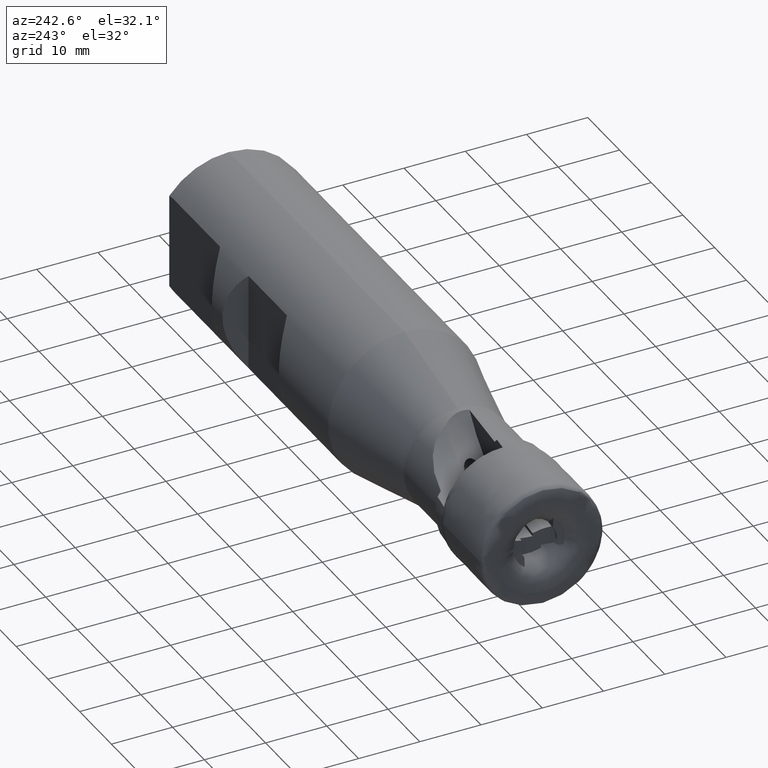
[diagram: clean part render]
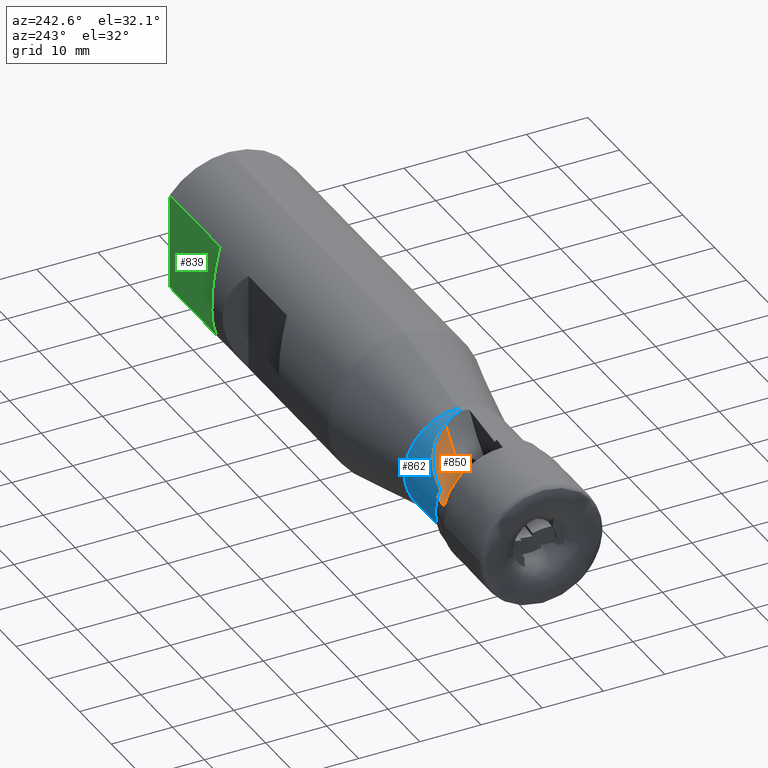
[diagram: same view with three faces highlighted in distinct colors, each labeled with its STEP entity id]
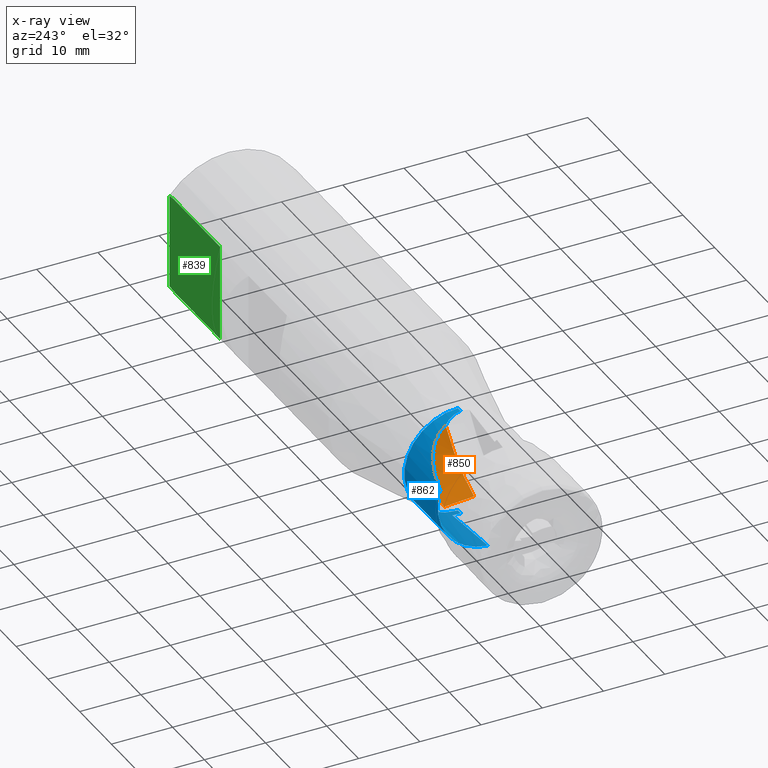
[diagram: x-ray of the same camera — body ghosted, the three highlighted faces saturated]
A machine part, auxiliary view with three faces highlighted in distinct colors.
The next image is the same camera in x-ray (body ghosted, the three faces saturated) — at least one of them is partly hidden behind the body in this view.
Their STEP definitions:

[orange] entity #850 — the highlighted cylindrical surface (partial cylindrical patch) has radius 19.8143 mm, axis along (-0.0872, -0.9962, -0).
#31 = CIRCLE ( 'NONE', #685, 19.81428554974587500 ) ;
#382 = EDGE_LOOP ( 'NONE', ( #734, #725, #746, #747, #697, #698 ) ) ;
#685 = AXIS2_PLACEMENT_3D ( 'NONE', #1000, #1192, #967 ) ;
#697 = ORIENTED_EDGE ( 'NONE', *, *, #1785, .F. ) ;
#698 = ORIENTED_EDGE ( 'NONE', *, *, #1861, .F. ) ;
#725 = ORIENTED_EDGE ( 'NONE', *, *, #1794, .T. ) ;
#734 = ORIENTED_EDGE ( 'NONE', *, *, #1835, .F. ) ;
#746 = ORIENTED_EDGE ( 'NONE', *, *, #1815, .T. ) ;
#747 = ORIENTED_EDGE ( 'NONE', *, *, #1842, .T. ) ;
#850 = ADVANCED_FACE ( 'NONE', ( #943 ), #925, .F. ) ;
#925 = CYLINDRICAL_SURFACE ( 'NONE', #1574, 19.81428554974587500 ) ;
#943 = FACE_OUTER_BOUND ( 'NONE', #382, .T. ) ;
#967 = DIRECTION ( 'NONE',  ( 0.9961946980917454300, -0.08715574274765848500, 0.0000000000000000000 ) ) ;
#983 = CARTESIAN_POINT ( 'NONE',  ( 14.50000000000020300, 9.219193377918768900, 2.604395027743460200 ) ) ;
#1000 = CARTESIAN_POINT ( 'NONE',  ( 9.157088783744884000, 4.516396856783984500, 21.80000000000000100 ) ) ;
#1002 = CARTESIAN_POINT ( 'NONE',  ( 15.05828743678069900, 8.588489677310288800, 2.768692456569553900 ) ) ;
#1039 = CARTESIAN_POINT ( 'NONE',  ( 14.78122092270199100, 8.904730300291522100, 2.683107926975033300 ) ) ;
#1069 = CARTESIAN_POINT ( 'NONE',  ( 15.32999999999999700, 8.269237145306405500, 2.860457486956373300 ) ) ;
#1092 = CARTESIAN_POINT ( 'NONE',  ( 14.50000000000020300, 9.219193377918768900, 2.604395027743460200 ) ) ;
#1103 = CARTESIAN_POINT ( 'NONE',  ( 12.35750454105835900, 7.793913043053199100, 2.199466215513528900 ) ) ;
#1114 = CARTESIAN_POINT ( 'NONE',  ( 12.14808933975809100, 9.335224908344882200, 2.151737881484960800 ) ) ;
#1132 = CARTESIAN_POINT ( 'NONE',  ( 23.43376164794002400, 3.267349828298721900, 8.117076142276666000 ) ) ;
#1135 = CARTESIAN_POINT ( 'NONE',  ( 13.72323294260443100, 9.275493978813630100, 2.405098791415420500 ) ) ;
#1151 = CARTESIAN_POINT ( 'NONE',  ( 14.50000000000020300, 9.219193377918768900, 2.604395027743460200 ) ) ;
#1160 = CARTESIAN_POINT ( 'NONE',  ( 12.14808933975809100, 9.335224908344882200, 2.151737881484960800 ) ) ;
#1163 = CARTESIAN_POINT ( 'NONE',  ( 12.60916826578094300, 4.214379036515348200, 2.291082953356585100 ) ) ;
#1168 = CARTESIAN_POINT ( 'NONE',  ( 12.93911113265485600, 9.311500880315470900, 2.254663586001330400 ) ) ;
#1184 = CARTESIAN_POINT ( 'NONE',  ( 15.32999999999999700, 8.269237145306405500, 2.860457486956373300 ) ) ;
#1192 = DIRECTION ( 'NONE',  ( -0.08715574274765848500, -0.9961946980917455500, -0.0000000000000000000 ) ) ;
#1574 = AXIS2_PLACEMENT_3D ( 'NONE', #2439, #2425, #2402 ) ;
#1785 = EDGE_CURVE ( 'NONE', #1891, #1944, #2965, .T. ) ;
#1794 = EDGE_CURVE ( 'NONE', #1962, #1966, #2986, .T. ) ;
#1815 = EDGE_CURVE ( 'NONE', #1966, #1909, #2998, .T. ) ;
#1835 = EDGE_CURVE ( 'NONE', #1962, #1917, #2977, .T. ) ;
#1842 = EDGE_CURVE ( 'NONE', #1909, #1944, #31, .T. ) ;
#1861 = EDGE_CURVE ( 'NONE', #1917, #1891, #3000, .T. ) ;
#1891 = VERTEX_POINT ( 'NONE', #1184 ) ;
#1909 = VERTEX_POINT ( 'NONE', #1163 ) ;
#1917 = VERTEX_POINT ( 'NONE', #1151 ) ;
#1944 = VERTEX_POINT ( 'NONE', #1132 ) ;
#1962 = VERTEX_POINT ( 'NONE', #1114 ) ;
#1966 = VERTEX_POINT ( 'NONE', #1103 ) ;
#2402 = DIRECTION ( 'NONE',  ( 0.9961946980917454300, -0.08715574274765848500, 0.0000000000000000000 ) ) ;
#2425 = DIRECTION ( 'NONE',  ( -0.08715574274765848500, -0.9961946980917455500, -0.0000000000000000000 ) ) ;
#2439 = CARTESIAN_POINT ( 'NONE',  ( 8.764887941380420600, 0.03352071537112875200, 21.80000000000000100 ) ) ;
#2965 = B_SPLINE_CURVE_WITH_KNOTS ( 'NONE', 3,
 ( #3144, #3142, #3160, #3155, #3156, #3164, #3163, #3158, #3168, #3167, #3166, #3176, #3170, #3169, #3180, #3179, #3173, #3183 ),
 .UNSPECIFIED., .F., .F.,
 ( 4, 2, 2, 2, 2, 2, 2, 2, 4 ),
 ( 0.0000000000000000000, 0.002853986607634761700, 0.004280979911452141900, 0.005707973215269523400, 0.007134966519086904900, 0.007848463170995599600, 0.008561959822904294200, 0.009988953126721687000, 0.01141594643053908000 ),
 .UNSPECIFIED. ) ;
#2977 = B_SPLINE_CURVE_WITH_KNOTS ( 'NONE', 3,
 ( #1160, #1168, #1135, #1092 ),
 .UNSPECIFIED., .F., .F.,
 ( 4, 4 ),
 ( 0.002150208388324101400, 0.004544272779798186300 ),
 .UNSPECIFIED. ) ;
#2986 = B_SPLINE_CURVE_WITH_KNOTS ( 'NONE', 3,
 ( #3024, #3238, #3018, #3021, #3249, #3225, #3260, #3223, #3220, #3215 ),
 .UNSPECIFIED., .F., .F.,
 ( 4, 2, 2, 2, 4 ),
 ( 0.0001602028114527275200, 0.0003541536202329839000, 0.0005481044290132402900, 0.0009360060465737530700, 0.001711809281694773300 ),
 .UNSPECIFIED. ) ;
#2998 = B_SPLINE_CURVE_WITH_KNOTS ( 'NONE', 3,
 ( #3181, #3201, #3232, #3234, #3239, #3259, #3236, #3204 ),
 .UNSPECIFIED., .F., .F.,
 ( 4, 2, 2, 4 ),
 ( 0.001711809281694773300, 0.003481850491449730600, 0.004366871096327209700, 0.005251891701204689600 ),
 .UNSPECIFIED. ) ;
#3000 = B_SPLINE_CURVE_WITH_KNOTS ( 'NONE', 3,
 ( #983, #1039, #1002, #1069 ),
 .UNSPECIFIED., .F., .F.,
 ( 4, 4 ),
 ( 3.051446358772103700E-007, 0.001287505527985962000 ),
 .UNSPECIFIED. ) ;
#3018 = CARTESIAN_POINT ( 'NONE',  ( 12.20943570861929400, 9.220462662369650200, 2.161116278138896600 ) ) ;
#3021 = CARTESIAN_POINT ( 'NONE',  ( 12.25000585324980500, 9.098318557367147000, 2.168023841386519800 ) ) ;
#3024 = CARTESIAN_POINT ( 'NONE',  ( 12.14808933975809100, 9.335224908344882200, 2.151737881484960800 ) ) ;
#3142 = CARTESIAN_POINT ( 'NONE',  ( 16.24356160217822500, 8.171553003352325800, 3.142850544303844400 ) ) ;
#3144 = CARTESIAN_POINT ( 'NONE',  ( 15.32999999999999700, 8.269237145306405500, 2.860457486956373300 ) ) ;
#3155 = CARTESIAN_POINT ( 'NONE',  ( 18.37954578594072800, 7.736385814230250600, 4.094101937760970400 ) ) ;
#3156 = CARTESIAN_POINT ( 'NONE',  ( 18.78886371659832500, 7.619280054321092300, 4.310672538368579300 ) ) ;
#3158 = CARTESIAN_POINT ( 'NONE',  ( 20.69154357656442000, 6.803188936859261700, 5.511440178407235100 ) ) ;
#3160 = CARTESIAN_POINT ( 'NONE',  ( 17.12170894847631400, 8.037264225539372500, 3.488298774828475100 ) ) ;
#3163 = CARTESIAN_POINT ( 'NONE',  ( 19.96800456535427400, 7.177554121959129700, 5.014186811150271900 ) ) ;
#3164 = CARTESIAN_POINT ( 'NONE',  ( 19.58547780666691200, 7.339156054208326700, 4.772013693525777500 ) ) ;
#3166 = CARTESIAN_POINT ( 'NONE',  ( 21.67089220548536200, 6.088202028302801800, 6.287465461064226000 ) ) ;
#3167 = CARTESIAN_POINT ( 'NONE',  ( 21.51541685416091100, 6.220264194116905900, 6.156528738411914500 ) ) ;
#3168 = CARTESIAN_POINT ( 'NONE',  ( 21.03382124753783000, 6.590088358753217100, 5.767266807582594800 ) ) ;
#3169 = CARTESIAN_POINT ( 'NONE',  ( 22.50113624147077800, 5.200692677573195000, 7.047924874154329400 ) ) ;
#3170 = CARTESIAN_POINT ( 'NONE',  ( 22.10492836584311900, 5.663822864969978900, 6.672563067803477700 ) ) ;
#3173 = CARTESIAN_POINT ( 'NONE',  ( 23.30459688688467100, 3.700354705202221000, 7.942779587038649500 ) ) ;
#3176 = CARTESIAN_POINT ( 'NONE',  ( 21.96529231098132600, 5.810222595757901200, 6.545207349599421000 ) ) ;
#3179 = CARTESIAN_POINT ( 'NONE',  ( 23.13975424038730500, 4.104384010111057400, 7.740130417555130600 ) ) ;
#3180 = CARTESIAN_POINT ( 'NONE',  ( 22.73570771025000400, 4.859182230682606000, 7.289988685329758400 ) ) ;
#3181 = CARTESIAN_POINT ( 'NONE',  ( 12.35750454105835900, 7.793913043053199100, 2.199466215513528900 ) ) ;
#3183 = CARTESIAN_POINT ( 'NONE',  ( 23.43376164794002400, 3.267349828298721900, 8.117076142276666000 ) ) ;
#3201 = CARTESIAN_POINT ( 'NONE',  ( 12.40132423161394500, 7.197427756812526700, 2.213629258503484000 ) ) ;
#3204 = CARTESIAN_POINT ( 'NONE',  ( 12.60916826578094300, 4.214379036515348200, 2.291082953356585100 ) ) ;
#3215 = CARTESIAN_POINT ( 'NONE',  ( 12.35750454105835900, 7.793913043053199100, 2.199466215513528900 ) ) ;
#3220 = CARTESIAN_POINT ( 'NONE',  ( 12.33829851494570700, 8.055350580336105200, 2.193258600396879000 ) ) ;
#3223 = CARTESIAN_POINT ( 'NONE',  ( 12.31900639309055000, 8.316784826594863800, 2.187175792387279700 ) ) ;
#3225 = CARTESIAN_POINT ( 'NONE',  ( 12.28165916831382500, 8.839755724653434400, 2.175489355008769300 ) ) ;
#3232 = CARTESIAN_POINT ( 'NONE',  ( 12.44472269445591900, 6.600929584000203600, 2.228447855113874900 ) ) ;
#3234 = CARTESIAN_POINT ( 'NONE',  ( 12.50851559709424200, 5.706112078903018400, 2.251519721760582900 ) ) ;
#3236 = CARTESIAN_POINT ( 'NONE',  ( 12.59291323292808300, 4.513008918845339500, 2.283583551356477500 ) ) ;
#3238 = CARTESIAN_POINT ( 'NONE',  ( 12.18130651279295600, 9.279917119674337300, 2.156676667587085200 ) ) ;
#3239 = CARTESIAN_POINT ( 'NONE',  ( 12.52955765184152500, 5.407827506600206400, 2.259349967640020800 ) ) ;
#3249 = CARTESIAN_POINT ( 'NONE',  ( 12.26486228069173400, 9.035656423663883900, 2.170815873247700100 ) ) ;
#3259 = CARTESIAN_POINT ( 'NONE',  ( 12.57096964759490600, 4.811216961657272900, 2.275241118653510400 ) ) ;
#3260 = CARTESIAN_POINT ( 'NONE',  ( 12.28996936579587600, 8.708933169708879900, 2.178244789000627800 ) ) ;

[blue] entity #862 — the highlighted cylindrical surface (partial cylindrical patch) has radius 8.75 mm, axis along (-1, -0, -0).
#5 = CIRCLE ( 'NONE', #678, 8.750000000000001800 ) ;
#27 = LINE ( 'NONE', #3053, #28 ) ;
#28 = VECTOR ( 'NONE', #3148, 1000.000000000000000 ) ;
#29 = LINE ( 'NONE', #3062, #36 ) ;
#36 = VECTOR ( 'NONE', #3110, 1000.000000000000000 ) ;
#345 = EDGE_LOOP ( 'NONE', ( #1927, #1312, #1222, #1313, #1235, #1227, #1233, #1260 ) ) ;
#461 =( BOUNDED_CURVE ( )  B_SPLINE_CURVE ( 3, ( #2216, #2222, #2240, #2313 ),
 .UNSPECIFIED., .F., .F. ) 
 B_SPLINE_CURVE_WITH_KNOTS ( ( 4, 4 ),
 ( 1.632647431041696300, 1.729151733528020200 ),
 .UNSPECIFIED. ) 
 CURVE ( )  GEOMETRIC_REPRESENTATION_ITEM ( )  RATIONAL_B_SPLINE_CURVE ( ( 1.000000000000000000, 0.9992240605340514400, 0.9992240605340514400, 1.000000000000000000 ) ) 
 REPRESENTATION_ITEM ( '' )  );
#677 = AXIS2_PLACEMENT_3D ( 'NONE', #3120, #3097, #3101 ) ;
#678 = AXIS2_PLACEMENT_3D ( 'NONE', #3089, #3133, #3185 ) ;
#862 = ADVANCED_FACE ( 'NONE', ( #886 ), #935, .T. ) ;
#886 = FACE_OUTER_BOUND ( 'NONE', #345, .T. ) ;
#935 = CYLINDRICAL_SURFACE ( 'NONE', #1751, 8.750000000000000000 ) ;
#1080 = CARTESIAN_POINT ( 'NONE',  ( 25.88881845449801100, 1.071565949253934300E-015, -8.750000000000001800 ) ) ;
#1132 = CARTESIAN_POINT ( 'NONE',  ( 23.43376164794002400, 3.267349828298721900, 8.117076142276666000 ) ) ;
#1150 = CARTESIAN_POINT ( 'NONE',  ( 25.00523610176858800, -2.389291030369640900E-015, 8.750000000000000000 ) ) ;
#1158 = CARTESIAN_POINT ( 'NONE',  ( 15.32999999999999700, 0.5408521645354892300, -8.733268513913751400 ) ) ;
#1170 = CARTESIAN_POINT ( 'NONE',  ( 25.88881845449801100, 0.0000000000000000000, 8.750000000000001800 ) ) ;
#1173 = CARTESIAN_POINT ( 'NONE',  ( 24.91951527507912400, 1.379826039813598900, -8.640519666076359700 ) ) ;
#1183 = CARTESIAN_POINT ( 'NONE',  ( 25.00523610176858100, 5.412682312035088200E-015, -8.750000000000000000 ) ) ;
#1184 = CARTESIAN_POINT ( 'NONE',  ( 15.32999999999999700, 8.269237145306405500, 2.860457486956373300 ) ) ;
#1222 = ORIENTED_EDGE ( 'NONE', *, *, #1806, .T. ) ;
#1227 = ORIENTED_EDGE ( 'NONE', *, *, #1785, .T. ) ;
#1233 = ORIENTED_EDGE ( 'NONE', *, *, #1780, .T. ) ;
#1235 = ORIENTED_EDGE ( 'NONE', *, *, #1798, .F. ) ;
#1260 = ORIENTED_EDGE ( 'NONE', *, *, #1804, .F. ) ;
#1312 = ORIENTED_EDGE ( 'NONE', *, *, #1826, .T. ) ;
#1313 = ORIENTED_EDGE ( 'NONE', *, *, #1402, .F. ) ;
#1402 = EDGE_CURVE ( 'NONE', #1928, #1901, #461, .T. ) ;
#1751 = AXIS2_PLACEMENT_3D ( 'NONE', #2939, #2938, #2901 ) ;
#1780 = EDGE_CURVE ( 'NONE', #1944, #1918, #2992, .T. ) ;
#1785 = EDGE_CURVE ( 'NONE', #1891, #1944, #2965, .T. ) ;
#1798 = EDGE_CURVE ( 'NONE', #1891, #1928, #2114, .T. ) ;
#1802 = EDGE_CURVE ( 'NONE', #1905, #1976, #5, .T. ) ;
#1804 = EDGE_CURVE ( 'NONE', #1905, #1918, #29, .T. ) ;
#1806 = EDGE_CURVE ( 'NONE', #1892, #1901, #3002, .T. ) ;
#1826 = EDGE_CURVE ( 'NONE', #1976, #1892, #27, .T. ) ;
#1891 = VERTEX_POINT ( 'NONE', #1184 ) ;
#1892 = VERTEX_POINT ( 'NONE', #1183 ) ;
#1901 = VERTEX_POINT ( 'NONE', #1173 ) ;
#1905 = VERTEX_POINT ( 'NONE', #1170 ) ;
#1918 = VERTEX_POINT ( 'NONE', #1150 ) ;
#1927 = ORIENTED_EDGE ( 'NONE', *, *, #1802, .T. ) ;
#1928 = VERTEX_POINT ( 'NONE', #1158 ) ;
#1944 = VERTEX_POINT ( 'NONE', #1132 ) ;
#1976 = VERTEX_POINT ( 'NONE', #1080 ) ;
#2114 = CIRCLE ( 'NONE', #677, 8.750000000000000000 ) ;
#2216 = CARTESIAN_POINT ( 'NONE',  ( 15.32999999999999700, 0.5408521645354892300, -8.733268513913751400 ) ) ;
#2222 = CARTESIAN_POINT ( 'NONE',  ( 18.54232169215571700, 0.8218938961975287300, -8.715863572264234800 ) ) ;
#2240 = CARTESIAN_POINT ( 'NONE',  ( 21.74130900435536500, 1.101769020778264400, -8.684923281859360200 ) ) ;
#2313 = CARTESIAN_POINT ( 'NONE',  ( 24.91951527507912400, 1.379826039813598900, -8.640519666076359700 ) ) ;
#2901 = DIRECTION ( 'NONE',  ( 0.0000000000000000000, 0.0000000000000000000, 1.000000000000000000 ) ) ;
#2938 = DIRECTION ( 'NONE',  ( -1.000000000000000000, -0.0000000000000000000, -0.0000000000000000000 ) ) ;
#2939 = CARTESIAN_POINT ( 'NONE',  ( 0.0000000000000000000, 0.0000000000000000000, 0.0000000000000000000 ) ) ;
#2965 = B_SPLINE_CURVE_WITH_KNOTS ( 'NONE', 3,
 ( #3144, #3142, #3160, #3155, #3156, #3164, #3163, #3158, #3168, #3167, #3166, #3176, #3170, #3169, #3180, #3179, #3173, #3183 ),
 .UNSPECIFIED., .F., .F.,
 ( 4, 2, 2, 2, 2, 2, 2, 2, 4 ),
 ( 0.0000000000000000000, 0.002853986607634761700, 0.004280979911452141900, 0.005707973215269523400, 0.007134966519086904900, 0.007848463170995599600, 0.008561959822904294200, 0.009988953126721687000, 0.01141594643053908000 ),
 .UNSPECIFIED. ) ;
#2992 = B_SPLINE_CURVE_WITH_KNOTS ( 'NONE', 3,
 ( #3247, #3235, #3009, #3036, #3040, #3007, #3123, #3124, #3116, #3117 ),
 .UNSPECIFIED., .F., .F.,
 ( 4, 2, 2, 2, 4 ),
 ( 0.002037227317283217000, 0.002973181312192276900, 0.003909135307101336800, 0.004845089302010396200, 0.005781043296919456500 ),
 .UNSPECIFIED. ) ;
#3002 = B_SPLINE_CURVE_WITH_KNOTS ( 'NONE', 3,
 ( #3250, #3093, #3099, #3091 ),
 .UNSPECIFIED., .F., .F.,
 ( 4, 4 ),
 ( 0.005781043296919468600, 0.007169565205976923200 ),
 .UNSPECIFIED. ) ;
#3007 = CARTESIAN_POINT ( 'NONE',  ( 24.62246767050885100, 1.510779856954319600, 8.623166605701861400 ) ) ;
#3009 = CARTESIAN_POINT ( 'NONE',  ( 23.83421365729247700, 2.813222782786951400, 8.289435525404117700 ) ) ;
#3036 = CARTESIAN_POINT ( 'NONE',  ( 24.18660149160181700, 2.320294763470966100, 8.440686936857247200 ) ) ;
#3040 = CARTESIAN_POINT ( 'NONE',  ( 24.34561787329210600, 2.060939832647374000, 8.508465495732943800 ) ) ;
#3053 = CARTESIAN_POINT ( 'NONE',  ( 0.0000000000000000000, 1.071565949253934100E-015, -8.750000000000000000 ) ) ;
#3062 = CARTESIAN_POINT ( 'NONE',  ( 0.0000000000000000000, 0.0000000000000000000, 8.750000000000000000 ) ) ;
#3089 = CARTESIAN_POINT ( 'NONE',  ( 25.88881845449801100, 0.0000000000000000000, 0.0000000000000000000 ) ) ;
#3091 = CARTESIAN_POINT ( 'NONE',  ( 24.91951527507912400, 1.379826039813598900, -8.640519666076359700 ) ) ;
#3093 = CARTESIAN_POINT ( 'NONE',  ( 25.04739810153690300, 0.4665829104859585100, -8.750000000000000000 ) ) ;
#3097 = DIRECTION ( 'NONE',  ( -1.000000000000000000, -0.0000000000000000000, -0.0000000000000000000 ) ) ;
#3099 = CARTESIAN_POINT ( 'NONE',  ( 25.01815910017910500, 0.9264441699406593700, -8.712921342619749200 ) ) ;
#3101 = DIRECTION ( 'NONE',  ( 0.0000000000000000000, 0.0000000000000000000, 1.000000000000000000 ) ) ;
#3110 = DIRECTION ( 'NONE',  ( -1.000000000000000000, -0.0000000000000000000, -0.0000000000000000000 ) ) ;
#3116 = CARTESIAN_POINT ( 'NONE',  ( 24.97681617417574200, 0.3145072009141405300, 8.750000000000001800 ) ) ;
#3117 = CARTESIAN_POINT ( 'NONE',  ( 25.00523610176858800, -2.389291030369640900E-015, 8.750000000000000000 ) ) ;
#3120 = CARTESIAN_POINT ( 'NONE',  ( 15.32999999999999700, 0.0000000000000000000, 0.0000000000000000000 ) ) ;
#3123 = CARTESIAN_POINT ( 'NONE',  ( 24.74002628487805200, 1.218702392632090100, 8.669893011018926300 ) ) ;
#3124 = CARTESIAN_POINT ( 'NONE',  ( 24.91628284550272100, 0.6227619918104284600, 8.732951840350340300 ) ) ;
#3133 = DIRECTION ( 'NONE',  ( -1.000000000000000000, -0.0000000000000000000, -0.0000000000000000000 ) ) ;
#3142 = CARTESIAN_POINT ( 'NONE',  ( 16.24356160217822500, 8.171553003352325800, 3.142850544303844400 ) ) ;
#3144 = CARTESIAN_POINT ( 'NONE',  ( 15.32999999999999700, 8.269237145306405500, 2.860457486956373300 ) ) ;
#3148 = DIRECTION ( 'NONE',  ( -1.000000000000000000, -0.0000000000000000000, -0.0000000000000000000 ) ) ;
#3155 = CARTESIAN_POINT ( 'NONE',  ( 18.37954578594072800, 7.736385814230250600, 4.094101937760970400 ) ) ;
#3156 = CARTESIAN_POINT ( 'NONE',  ( 18.78886371659832500, 7.619280054321092300, 4.310672538368579300 ) ) ;
#3158 = CARTESIAN_POINT ( 'NONE',  ( 20.69154357656442000, 6.803188936859261700, 5.511440178407235100 ) ) ;
#3160 = CARTESIAN_POINT ( 'NONE',  ( 17.12170894847631400, 8.037264225539372500, 3.488298774828475100 ) ) ;
#3163 = CARTESIAN_POINT ( 'NONE',  ( 19.96800456535427400, 7.177554121959129700, 5.014186811150271900 ) ) ;
#3164 = CARTESIAN_POINT ( 'NONE',  ( 19.58547780666691200, 7.339156054208326700, 4.772013693525777500 ) ) ;
#3166 = CARTESIAN_POINT ( 'NONE',  ( 21.67089220548536200, 6.088202028302801800, 6.287465461064226000 ) ) ;
#3167 = CARTESIAN_POINT ( 'NONE',  ( 21.51541685416091100, 6.220264194116905900, 6.156528738411914500 ) ) ;
#3168 = CARTESIAN_POINT ( 'NONE',  ( 21.03382124753783000, 6.590088358753217100, 5.767266807582594800 ) ) ;
#3169 = CARTESIAN_POINT ( 'NONE',  ( 22.50113624147077800, 5.200692677573195000, 7.047924874154329400 ) ) ;
#3170 = CARTESIAN_POINT ( 'NONE',  ( 22.10492836584311900, 5.663822864969978900, 6.672563067803477700 ) ) ;
#3173 = CARTESIAN_POINT ( 'NONE',  ( 23.30459688688467100, 3.700354705202221000, 7.942779587038649500 ) ) ;
#3176 = CARTESIAN_POINT ( 'NONE',  ( 21.96529231098132600, 5.810222595757901200, 6.545207349599421000 ) ) ;
#3179 = CARTESIAN_POINT ( 'NONE',  ( 23.13975424038730500, 4.104384010111057400, 7.740130417555130600 ) ) ;
#3180 = CARTESIAN_POINT ( 'NONE',  ( 22.73570771025000400, 4.859182230682606000, 7.289988685329758400 ) ) ;
#3183 = CARTESIAN_POINT ( 'NONE',  ( 23.43376164794002400, 3.267349828298721900, 8.117076142276666000 ) ) ;
#3185 = DIRECTION ( 'NONE',  ( 0.0000000000000000000, 0.0000000000000000000, 1.000000000000000000 ) ) ;
#3235 = CARTESIAN_POINT ( 'NONE',  ( 23.63946460973668500, 3.048010613300956800, 8.205366301676591000 ) ) ;
#3247 = CARTESIAN_POINT ( 'NONE',  ( 23.43376164794002400, 3.267349828298721900, 8.117076142276666000 ) ) ;
#3250 = CARTESIAN_POINT ( 'NONE',  ( 25.00523610176858100, 5.412682312035088200E-015, -8.750000000000000000 ) ) ;

[green] entity #839 — the highlighted planar face has unit normal (0, -1, 0).
#1 = VECTOR ( 'NONE', #1087, 1000.000000000000000 ) ;
#6 = LINE ( 'NONE', #3075, #17 ) ;
#17 = VECTOR ( 'NONE', #3083, 1000.000000000000000 ) ;
#37 = LINE ( 'NONE', #1070, #1 ) ;
#89 = CARTESIAN_POINT ( 'NONE',  ( -2.103352214621875100E-015, 9.699999999999983300, -7.884161337770832400 ) ) ;
#294 = DIRECTION ( 'NONE',  ( 1.000000000000000000, 0.0000000000000000000, 0.0000000000000000000 ) ) ;
#396 = EDGE_LOOP ( 'NONE', ( #546, #518, #620, #527, #534, #603 ) ) ;
#467 = B_SPLINE_CURVE_WITH_KNOTS ( 'NONE', 3,
 ( #2327, #2149, #2187, #2326 ),
 .UNSPECIFIED., .F., .F.,
 ( 4, 4 ),
 ( 0.02309770409454797700, 0.02435779603977662700 ),
 .UNSPECIFIED. ) ;
#480 = B_SPLINE_CURVE_WITH_KNOTS ( 'NONE', 3,
 ( #2199, #2125, #2347, #2373 ),
 .UNSPECIFIED., .F., .F.,
 ( 4, 4 ),
 ( 0.02194251888729369100, 0.02320234446291387400 ),
 .UNSPECIFIED. ) ;
#518 = ORIENTED_EDGE ( 'NONE', *, *, #1558, .F. ) ;
#527 = ORIENTED_EDGE ( 'NONE', *, *, #1506, .F. ) ;
#534 = ORIENTED_EDGE ( 'NONE', *, *, #1690, .F. ) ;
#546 = ORIENTED_EDGE ( 'NONE', *, *, #1807, .F. ) ;
#603 = ORIENTED_EDGE ( 'NONE', *, *, #1784, .T. ) ;
#620 = ORIENTED_EDGE ( 'NONE', *, *, #1865, .F. ) ;
#839 = ADVANCED_FACE ( 'NONE', ( #915 ), #2450, .F. ) ;
#915 = FACE_OUTER_BOUND ( 'NONE', #396, .T. ) ;
#1043 = CARTESIAN_POINT ( 'NONE',  ( 98.09999999999999400, 9.700000000000004600, -7.724635913750234700 ) ) ;
#1070 = CARTESIAN_POINT ( 'NONE',  ( 98.09999999999999400, 9.700000000000004600, -10.00000000000000000 ) ) ;
#1087 = DIRECTION ( 'NONE',  ( -0.0000000000000000000, -0.0000000000000000000, 1.000000000000000000 ) ) ;
#1121 = CARTESIAN_POINT ( 'NONE',  ( 98.09999999999999400, 9.700000000000004600, 7.724635913750233800 ) ) ;
#1169 = CARTESIAN_POINT ( 'NONE',  ( 82.09999999999999400, 9.700000000000001100, -7.884161337770832400 ) ) ;
#1174 = CARTESIAN_POINT ( 'NONE',  ( 96.84999999999998000, 9.700000000000004600, 7.884161337770806600 ) ) ;
#1178 = CARTESIAN_POINT ( 'NONE',  ( 96.84999999999998000, 9.699999999999983300, -7.884161337770832400 ) ) ;
#1201 = CARTESIAN_POINT ( 'NONE',  ( 82.09999999999999400, 9.700000000000001100, 7.884161337770806600 ) ) ;
#1506 = EDGE_CURVE ( 'NONE', #1893, #1957, #467, .T. ) ;
#1558 = EDGE_CURVE ( 'NONE', #1930, #1899, #480, .T. ) ;
#1690 = EDGE_CURVE ( 'NONE', #1900, #1893, #2046, .T. ) ;
#1756 = AXIS2_PLACEMENT_3D ( 'NONE', #2464, #2549, #2443 ) ;
#1784 = EDGE_CURVE ( 'NONE', #1900, #1869, #2056, .T. ) ;
#1807 = EDGE_CURVE ( 'NONE', #1899, #1869, #6, .T. ) ;
#1865 = EDGE_CURVE ( 'NONE', #1957, #1930, #37, .T. ) ;
#1869 = VERTEX_POINT ( 'NONE', #1201 ) ;
#1893 = VERTEX_POINT ( 'NONE', #1178 ) ;
#1899 = VERTEX_POINT ( 'NONE', #1174 ) ;
#1900 = VERTEX_POINT ( 'NONE', #1169 ) ;
#1930 = VERTEX_POINT ( 'NONE', #1121 ) ;
#1957 = VERTEX_POINT ( 'NONE', #1043 ) ;
#2031 = VECTOR ( 'NONE', #294, 1000.000000000000000 ) ;
#2046 = LINE ( 'NONE', #89, #2031 ) ;
#2055 = VECTOR ( 'NONE', #3132, 1000.000000000000000 ) ;
#2056 = LINE ( 'NONE', #3010, #2055 ) ;
#2125 = CARTESIAN_POINT ( 'NONE',  ( 97.68337565130880800, 9.700000000000004600, 7.778138934283017400 ) ) ;
#2149 = CARTESIAN_POINT ( 'NONE',  ( 97.26671408251731100, 9.700000000000004600, -7.831306751891014000 ) ) ;
#2187 = CARTESIAN_POINT ( 'NONE',  ( 97.68338253537480400, 9.700000000000004600, -7.778138050229253000 ) ) ;
#2199 = CARTESIAN_POINT ( 'NONE',  ( 98.09999999999999400, 9.700000000000004600, 7.724635913750233800 ) ) ;
#2326 = CARTESIAN_POINT ( 'NONE',  ( 98.09999999999999400, 9.700000000000004600, -7.724635913750234700 ) ) ;
#2327 = CARTESIAN_POINT ( 'NONE',  ( 96.84999999999998000, 9.699999999999983300, -7.884161337770832400 ) ) ;
#2347 = CARTESIAN_POINT ( 'NONE',  ( 97.26670783851581300, 9.700000000000004600, 7.831307543858763200 ) ) ;
#2373 = CARTESIAN_POINT ( 'NONE',  ( 96.84999999999998000, 9.700000000000004600, 7.884161337770806600 ) ) ;
#2443 = DIRECTION ( 'NONE',  ( 1.000000000000000000, 2.168404344971008900E-016, 0.0000000000000000000 ) ) ;
#2450 = PLANE ( 'NONE',  #1756 ) ;
#2464 = CARTESIAN_POINT ( 'NONE',  ( 98.09999999999999400, 9.700000000000004600, -10.00000000000000000 ) ) ;
#2549 = DIRECTION ( 'NONE',  ( 2.168404344971008900E-016, -1.000000000000000000, 0.0000000000000000000 ) ) ;
#3010 = CARTESIAN_POINT ( 'NONE',  ( 82.09999999999999400, 9.700000000000001100, -10.00000000000000000 ) ) ;
#3075 = CARTESIAN_POINT ( 'NONE',  ( -2.103352214621875100E-015, 9.699999999999983300, 7.884161337770832400 ) ) ;
#3083 = DIRECTION ( 'NONE',  ( -1.000000000000000000, -0.0000000000000000000, -0.0000000000000000000 ) ) ;
#3132 = DIRECTION ( 'NONE',  ( -0.0000000000000000000, -0.0000000000000000000, 1.000000000000000000 ) ) ;